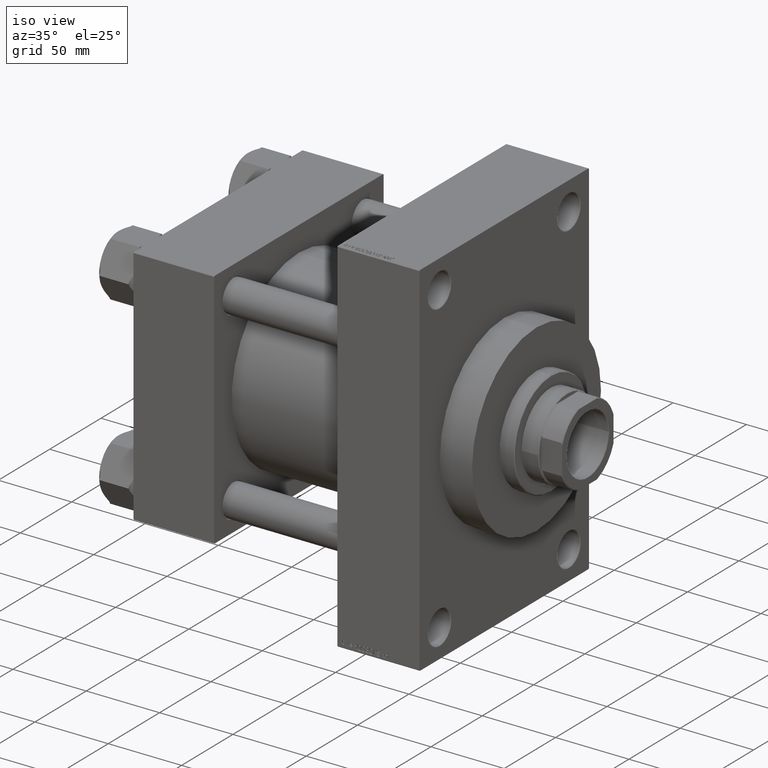
[diagram: clean part render]
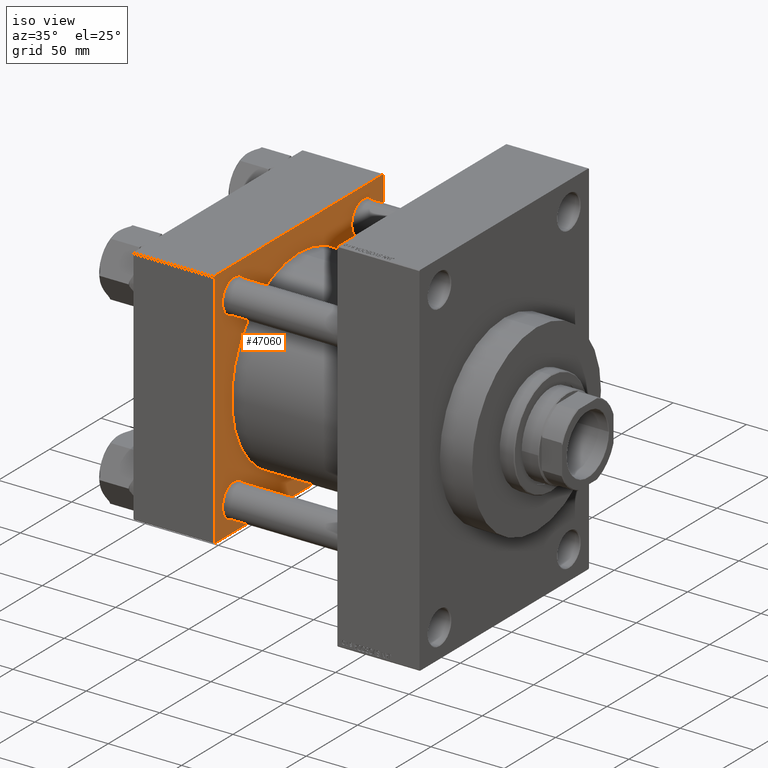
[diagram: same view with one face highlighted and labeled with its STEP entity id]
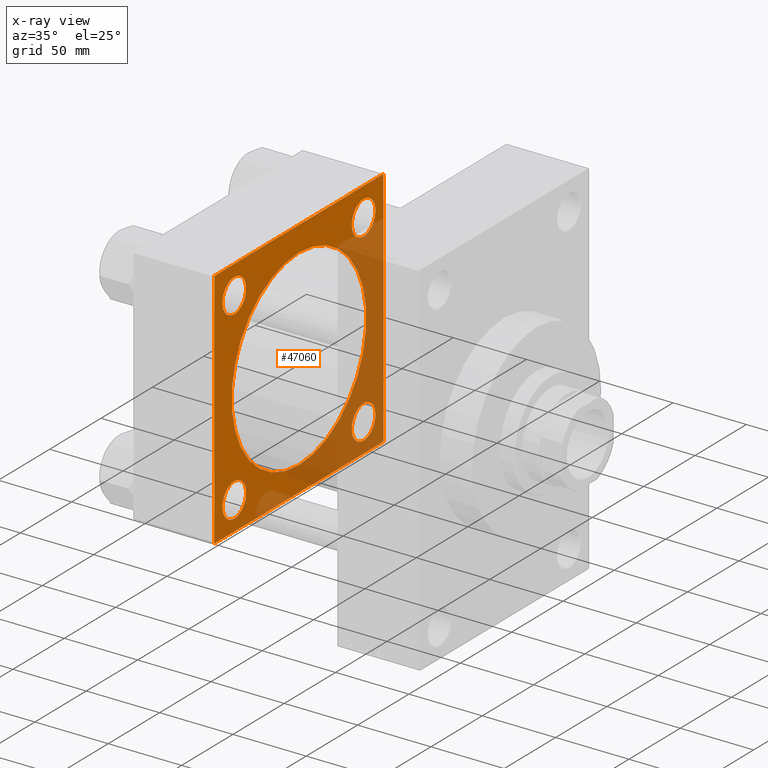
[diagram: x-ray of the same camera — body ghosted, the highlighted face saturated]
A machine part, iso view. The second image highlights one B-rep face of the part: STEP entity #47060.
The next image is the same camera in x-ray: the body ghosted, the highlighted face saturated — about 39% of this face is hidden behind the body in this view.
In plain terms, the highlighted planar face has unit normal (-1, 0, 0).
Its self-contained STEP definition (entity closure, byte-faithful):
#167 = DIRECTION ( 'NONE',  ( -1.000000000000000000, 0.000000000000000000, 0.000000000000000000 ) ) ;
#225 = CIRCLE ( 'NONE', #39493, 11.49999999999998224 ) ;
#533 = DIRECTION ( 'NONE',  ( 0.000000000000000000, 0.000000000000000000, 1.000000000000000000 ) ) ;
#554 = DIRECTION ( 'NONE',  ( 0.000000000000000000, 0.000000000000000000, -1.000000000000000000 ) ) ;
#907 = DIRECTION ( 'NONE',  ( 0.000000000000000000, -0.7071067811865474617, 0.7071067811865474617 ) ) ;
#1019 = AXIS2_PLACEMENT_3D ( 'NONE', #18051, #29617, #21889 ) ;
#1151 = CARTESIAN_POINT ( 'NONE',  ( 55.00000000000000000, 82.00000000000005684, 82.50000000000002842 ) ) ;
#2075 = CARTESIAN_POINT ( 'NONE',  ( 55.00000000000000000, -82.50000000000000000, -81.99999999999998579 ) ) ;
#2343 = FACE_BOUND ( 'NONE', #7820, .T. ) ;
#2450 = EDGE_CURVE ( 'NONE', #34310, #31307, #19427, .T. ) ;
#2485 = CARTESIAN_POINT ( 'NONE',  ( 55.00000000000000000, 82.00000000000005684, 82.50000000000002842 ) ) ;
#2886 = CARTESIAN_POINT ( 'NONE',  ( 55.00000000000000000, -62.94999999999998153, -74.45000000000000284 ) ) ;
#3002 = ORIENTED_EDGE ( 'NONE', *, *, #8095, .F. ) ;
#3264 = CIRCLE ( 'NONE', #4827, 11.49999999999998224 ) ;
#3721 = VERTEX_POINT ( 'NONE', #2075 ) ;
#3910 = CARTESIAN_POINT ( 'NONE',  ( 55.00000000000000000, -82.00000000000000000, -82.50000000000000000 ) ) ;
#4416 = LINE ( 'NONE', #30677, #35983 ) ;
#4827 = AXIS2_PLACEMENT_3D ( 'NONE', #18432, #43750, #33146 ) ;
#5022 = VERTEX_POINT ( 'NONE', #47587 ) ;
#5739 = FACE_BOUND ( 'NONE', #9983, .T. ) ;
#5858 = CARTESIAN_POINT ( 'NONE',  ( 55.00000000000000000, 82.50000000000002842, 82.00000000000005684 ) ) ;
#6414 = AXIS2_PLACEMENT_3D ( 'NONE', #16267, #27592, #35546 ) ;
#7015 = VERTEX_POINT ( 'NONE', #44337 ) ;
#7820 = EDGE_LOOP ( 'NONE', ( #32585, #22400 ) ) ;
#8095 = EDGE_CURVE ( 'NONE', #7015, #38615, #22648, .T. ) ;
#8763 = EDGE_CURVE ( 'NONE', #15792, #10392, #27321, .T. ) ;
#9437 = CARTESIAN_POINT ( 'NONE',  ( 55.00000000000000000, 82.50000000000002842, -82.00000000000000000 ) ) ;
#9983 = EDGE_LOOP ( 'NONE', ( #39595, #15874 ) ) ;
#10211 = AXIS2_PLACEMENT_3D ( 'NONE', #22156, #21918, #44602 ) ;
#10334 = DIRECTION ( 'NONE',  ( 0.000000000000000000, 0.000000000000000000, 1.000000000000000000 ) ) ;
#10392 = VERTEX_POINT ( 'NONE', #19638 ) ;
#10522 = VECTOR ( 'NONE', #39565, 1000.000000000000000 ) ;
#10529 = DIRECTION ( 'NONE',  ( 0.000000000000000000, 0.000000000000000000, 1.000000000000000000 ) ) ;
#10596 = LINE ( 'NONE', #13748, #10522 ) ;
#11341 = EDGE_CURVE ( 'NONE', #34905, #3721, #41199, .T. ) ;
#11638 = DIRECTION ( 'NONE',  ( 0.000000000000000000, -1.000000000000000000, -1.682156097916903588E-16 ) ) ;
#11755 = CIRCLE ( 'NONE', #10211, 11.49999999999998224 ) ;
#12113 = ORIENTED_EDGE ( 'NONE', *, *, #17661, .T. ) ;
#12915 = CARTESIAN_POINT ( 'NONE',  ( 55.00000000000000000, -82.49999999999997158, 82.00000000000001421 ) ) ;
#12975 = ORIENTED_EDGE ( 'NONE', *, *, #46500, .T. ) ;
#13405 = EDGE_CURVE ( 'NONE', #36495, #35851, #39066, .T. ) ;
#13652 = AXIS2_PLACEMENT_3D ( 'NONE', #15578, #30291, #38478 ) ;
#13662 = EDGE_LOOP ( 'NONE', ( #19589, #3002 ) ) ;
#13748 = CARTESIAN_POINT ( 'NONE',  ( 55.00000000000000000, 82.50000000000002842, 82.50000000000002842 ) ) ;
#15005 = DIRECTION ( 'NONE',  ( -1.000000000000000000, 0.000000000000000000, 0.000000000000000000 ) ) ;
#15048 = LINE ( 'NONE', #29753, #33527 ) ;
#15378 = CARTESIAN_POINT ( 'NONE',  ( 55.00000000000000000, -82.49999999999997158, 82.50000000000001421 ) ) ;
#15578 = CARTESIAN_POINT ( 'NONE',  ( 55.00000000000000000, -62.94999999999998153, 62.95000000000001705 ) ) ;
#15698 = CARTESIAN_POINT ( 'NONE',  ( 54.99999999999999289, -2.602085213965210642E-15, 0.000000000000000000 ) ) ;
#15792 = VERTEX_POINT ( 'NONE', #23350 ) ;
#15874 = ORIENTED_EDGE ( 'NONE', *, *, #13405, .T. ) ;
#16267 = CARTESIAN_POINT ( 'NONE',  ( 55.00000000000000000, 62.95000000000000284, -62.95000000000000284 ) ) ;
#16530 = EDGE_CURVE ( 'NONE', #31307, #34310, #225, .T. ) ;
#16566 = VECTOR ( 'NONE', #554, 1000.000000000000000 ) ;
#16822 = FACE_BOUND ( 'NONE', #13662, .T. ) ;
#17373 = VERTEX_POINT ( 'NONE', #3910 ) ;
#17661 = EDGE_CURVE ( 'NONE', #38463, #34905, #33077, .T. ) ;
#18051 = CARTESIAN_POINT ( 'NONE',  ( 54.99999999999999289, -2.602085213965210642E-15, 0.000000000000000000 ) ) ;
#18131 = ORIENTED_EDGE ( 'NONE', *, *, #8763, .T. ) ;
#18432 = CARTESIAN_POINT ( 'NONE',  ( 55.00000000000000000, 62.95000000000000284, -62.95000000000000284 ) ) ;
#18880 = CARTESIAN_POINT ( 'NONE',  ( 55.00000000000000000, 82.50000000000002842, 82.50000000000002842 ) ) ;
#19427 = CIRCLE ( 'NONE', #20156, 11.49999999999998224 ) ;
#19589 = ORIENTED_EDGE ( 'NONE', *, *, #40605, .F. ) ;
#19638 = CARTESIAN_POINT ( 'NONE',  ( 55.00000000000000000, 82.50000000000002842, -82.00000000000000000 ) ) ;
#20085 = EDGE_CURVE ( 'NONE', #3721, #17373, #15048, .T. ) ;
#20156 = AXIS2_PLACEMENT_3D ( 'NONE', #37441, #36944, #533 ) ;
#20624 = CARTESIAN_POINT ( 'NONE',  ( 55.00000000000000000, -62.94999999999998153, 51.45000000000003837 ) ) ;
#21023 = VECTOR ( 'NONE', #21714, 1000.000000000000114 ) ;
#21092 = VECTOR ( 'NONE', #24399, 1000.000000000000114 ) ;
#21105 = EDGE_CURVE ( 'NONE', #44011, #29856, #41888, .T. ) ;
#21714 = DIRECTION ( 'NONE',  ( -0.000000000000000000, -0.7071067811865474617, -0.7071067811865474617 ) ) ;
#21731 = CARTESIAN_POINT ( 'NONE',  ( 55.00000000000000000, 62.95000000000000284, -74.44999999999998863 ) ) ;
#21854 = EDGE_CURVE ( 'NONE', #44011, #10392, #33595, .T. ) ;
#21873 = VECTOR ( 'NONE', #41427, 1000.000000000000000 ) ;
#21889 = DIRECTION ( 'NONE',  ( 0.000000000000000000, 0.000000000000000000, 1.000000000000000000 ) ) ;
#21918 = DIRECTION ( 'NONE',  ( -1.000000000000000000, 0.000000000000000000, 0.000000000000000000 ) ) ;
#22096 = CARTESIAN_POINT ( 'NONE',  ( 55.00000000000000000, 0.000000000000000000, 0.000000000000000000 ) ) ;
#22156 = CARTESIAN_POINT ( 'NONE',  ( 55.00000000000000000, 62.95000000000000284, 62.95000000000000284 ) ) ;
#22400 = ORIENTED_EDGE ( 'NONE', *, *, #16530, .T. ) ;
#22576 = ORIENTED_EDGE ( 'NONE', *, *, #21105, .T. ) ;
#22648 = CIRCLE ( 'NONE', #43440, 65.50000000000001421 ) ;
#22690 = ORIENTED_EDGE ( 'NONE', *, *, #20085, .T. ) ;
#22854 = ORIENTED_EDGE ( 'NONE', *, *, #28884, .T. ) ;
#23350 = CARTESIAN_POINT ( 'NONE',  ( 55.00000000000000000, 82.00000000000005684, -82.49999999999997158 ) ) ;
#23351 = CIRCLE ( 'NONE', #6414, 11.49999999999998224 ) ;
#23450 = DIRECTION ( 'NONE',  ( -1.000000000000000000, 0.000000000000000000, 0.000000000000000000 ) ) ;
#23788 = CARTESIAN_POINT ( 'NONE',  ( 55.00000000000000000, 62.95000000000000284, 51.45000000000002416 ) ) ;
#24046 = FACE_BOUND ( 'NONE', #35138, .T. ) ;
#24399 = DIRECTION ( 'NONE',  ( -0.000000000000000000, 0.7071067811865474617, 0.7071067811865474617 ) ) ;
#25037 = EDGE_LOOP ( 'NONE', ( #31534, #39399 ) ) ;
#25128 = CARTESIAN_POINT ( 'NONE',  ( 55.00000000000000000, -62.94999999999998153, -62.95000000000001705 ) ) ;
#26169 = EDGE_CURVE ( 'NONE', #15792, #17373, #4416, .T. ) ;
#26230 = ORIENTED_EDGE ( 'NONE', *, *, #26169, .F. ) ;
#27313 = CARTESIAN_POINT ( 'NONE',  ( 55.00000000000000000, 62.95000000000000284, 62.95000000000000284 ) ) ;
#27321 = LINE ( 'NONE', #9437, #21092 ) ;
#27592 = DIRECTION ( 'NONE',  ( -1.000000000000000000, 0.000000000000000000, 0.000000000000000000 ) ) ;
#28492 = EDGE_CURVE ( 'NONE', #35851, #36495, #43644, .T. ) ;
#28884 = EDGE_CURVE ( 'NONE', #29856, #38463, #10596, .T. ) ;
#29217 = DIRECTION ( 'NONE',  ( 0.000000000000000000, 0.000000000000000000, 1.000000000000000000 ) ) ;
#29280 = AXIS2_PLACEMENT_3D ( 'NONE', #27313, #23450, #45876 ) ;
#29617 = DIRECTION ( 'NONE',  ( 1.000000000000000000, -0.000000000000000000, -0.000000000000000000 ) ) ;
#29753 = CARTESIAN_POINT ( 'NONE',  ( 55.00000000000000000, -82.00000000000000000, -82.50000000000000000 ) ) ;
#29856 = VERTEX_POINT ( 'NONE', #2485 ) ;
#30291 = DIRECTION ( 'NONE',  ( -1.000000000000000000, 0.000000000000000000, 0.000000000000000000 ) ) ;
#30326 = VERTEX_POINT ( 'NONE', #23788 ) ;
#30677 = CARTESIAN_POINT ( 'NONE',  ( 55.00000000000000000, 82.50000000000002842, -82.49999999999997158 ) ) ;
#30832 = CIRCLE ( 'NONE', #29280, 11.49999999999998224 ) ;
#31277 = ORIENTED_EDGE ( 'NONE', *, *, #11341, .T. ) ;
#31307 = VERTEX_POINT ( 'NONE', #47180 ) ;
#31524 = FACE_OUTER_BOUND ( 'NONE', #36451, .T. ) ;
#31534 = ORIENTED_EDGE ( 'NONE', *, *, #38170, .T. ) ;
#31949 = ORIENTED_EDGE ( 'NONE', *, *, #21854, .F. ) ;
#32051 = CARTESIAN_POINT ( 'NONE',  ( 55.00000000000000000, -81.99999999999997158, 82.50000000000001421 ) ) ;
#32585 = ORIENTED_EDGE ( 'NONE', *, *, #2450, .T. ) ;
#32744 = VERTEX_POINT ( 'NONE', #40827 ) ;
#33077 = LINE ( 'NONE', #40066, #21023 ) ;
#33146 = DIRECTION ( 'NONE',  ( 0.000000000000000000, 0.000000000000000000, 1.000000000000000000 ) ) ;
#33527 = VECTOR ( 'NONE', #44470, 999.9999999999998863 ) ;
#33595 = LINE ( 'NONE', #18880, #16566 ) ;
#34310 = VERTEX_POINT ( 'NONE', #2886 ) ;
#34434 = CARTESIAN_POINT ( 'NONE',  ( 55.00000000000000000, -62.94999999999998153, 74.45000000000000284 ) ) ;
#34905 = VERTEX_POINT ( 'NONE', #12915 ) ;
#35138 = EDGE_LOOP ( 'NONE', ( #12975, #44805 ) ) ;
#35158 = FACE_BOUND ( 'NONE', #25037, .T. ) ;
#35546 = DIRECTION ( 'NONE',  ( 0.000000000000000000, 0.000000000000000000, 1.000000000000000000 ) ) ;
#35666 = AXIS2_PLACEMENT_3D ( 'NONE', #22096, #167, #10529 ) ;
#35851 = VERTEX_POINT ( 'NONE', #20624 ) ;
#35852 = VECTOR ( 'NONE', #907, 1000.000000000000114 ) ;
#35920 = DIRECTION ( 'NONE',  ( -1.000000000000000000, 0.000000000000000000, 0.000000000000000000 ) ) ;
#35983 = VECTOR ( 'NONE', #11638, 1000.000000000000000 ) ;
#36451 = EDGE_LOOP ( 'NONE', ( #26230, #18131, #31949, #22576, #22854, #12113, #31277, #22690 ) ) ;
#36495 = VERTEX_POINT ( 'NONE', #34434 ) ;
#36944 = DIRECTION ( 'NONE',  ( -1.000000000000000000, 0.000000000000000000, 0.000000000000000000 ) ) ;
#37441 = CARTESIAN_POINT ( 'NONE',  ( 55.00000000000000000, -62.94999999999998153, -62.95000000000001705 ) ) ;
#37892 = DIRECTION ( 'NONE',  ( 1.000000000000000000, -0.000000000000000000, -0.000000000000000000 ) ) ;
#38170 = EDGE_CURVE ( 'NONE', #30326, #32744, #30832, .T. ) ;
#38463 = VERTEX_POINT ( 'NONE', #32051 ) ;
#38478 = DIRECTION ( 'NONE',  ( 0.000000000000000000, 0.000000000000000000, 1.000000000000000000 ) ) ;
#38615 = VERTEX_POINT ( 'NONE', #44586 ) ;
#39066 = CIRCLE ( 'NONE', #13652, 11.49999999999998224 ) ;
#39399 = ORIENTED_EDGE ( 'NONE', *, *, #43493, .T. ) ;
#39493 = AXIS2_PLACEMENT_3D ( 'NONE', #25128, #15005, #29217 ) ;
#39565 = DIRECTION ( 'NONE',  ( 0.000000000000000000, -1.000000000000000000, -8.410780489584519171E-17 ) ) ;
#39595 = ORIENTED_EDGE ( 'NONE', *, *, #28492, .T. ) ;
#40066 = CARTESIAN_POINT ( 'NONE',  ( 55.00000000000000000, -82.49999999999997158, 82.00000000000001421 ) ) ;
#40605 = EDGE_CURVE ( 'NONE', #38615, #7015, #45699, .T. ) ;
#40827 = CARTESIAN_POINT ( 'NONE',  ( 55.00000000000000000, 62.95000000000000284, 74.44999999999998863 ) ) ;
#41199 = LINE ( 'NONE', #15378, #21873 ) ;
#41274 = EDGE_CURVE ( 'NONE', #5022, #44276, #23351, .T. ) ;
#41427 = DIRECTION ( 'NONE',  ( 0.000000000000000000, -1.682156097916903588E-16, -1.000000000000000000 ) ) ;
#41888 = LINE ( 'NONE', #1151, #35852 ) ;
#42632 = PLANE ( 'NONE',  #35666 ) ;
#42892 = AXIS2_PLACEMENT_3D ( 'NONE', #46999, #35920, #10334 ) ;
#43440 = AXIS2_PLACEMENT_3D ( 'NONE', #15698, #37892, #45123 ) ;
#43493 = EDGE_CURVE ( 'NONE', #32744, #30326, #11755, .T. ) ;
#43644 = CIRCLE ( 'NONE', #42892, 11.49999999999998224 ) ;
#43750 = DIRECTION ( 'NONE',  ( -1.000000000000000000, 0.000000000000000000, 0.000000000000000000 ) ) ;
#44011 = VERTEX_POINT ( 'NONE', #5858 ) ;
#44276 = VERTEX_POINT ( 'NONE', #21731 ) ;
#44337 = CARTESIAN_POINT ( 'NONE',  ( 54.99999999999999289, 5.419351320449953395E-15, -65.50000000000001421 ) ) ;
#44470 = DIRECTION ( 'NONE',  ( 0.000000000000000000, 0.7071067811865376918, -0.7071067811865574537 ) ) ;
#44586 = CARTESIAN_POINT ( 'NONE',  ( 54.99999999999999289, -2.602085213965210642E-15, 65.50000000000001421 ) ) ;
#44602 = DIRECTION ( 'NONE',  ( 0.000000000000000000, 0.000000000000000000, 1.000000000000000000 ) ) ;
#44805 = ORIENTED_EDGE ( 'NONE', *, *, #41274, .T. ) ;
#45123 = DIRECTION ( 'NONE',  ( 0.000000000000000000, 0.000000000000000000, 1.000000000000000000 ) ) ;
#45699 = CIRCLE ( 'NONE', #1019, 65.50000000000001421 ) ;
#45876 = DIRECTION ( 'NONE',  ( 0.000000000000000000, 0.000000000000000000, 1.000000000000000000 ) ) ;
#46500 = EDGE_CURVE ( 'NONE', #44276, #5022, #3264, .T. ) ;
#46999 = CARTESIAN_POINT ( 'NONE',  ( 55.00000000000000000, -62.94999999999998153, 62.95000000000001705 ) ) ;
#47060 = ADVANCED_FACE ( 'NONE', ( #2343, #24046, #5739, #35158, #16822, #31524 ), #42632, .F. ) ;
#47180 = CARTESIAN_POINT ( 'NONE',  ( 55.00000000000000000, -62.94999999999998153, -51.45000000000003837 ) ) ;
#47587 = CARTESIAN_POINT ( 'NONE',  ( 55.00000000000000000, 62.95000000000000284, -51.45000000000002416 ) ) ;